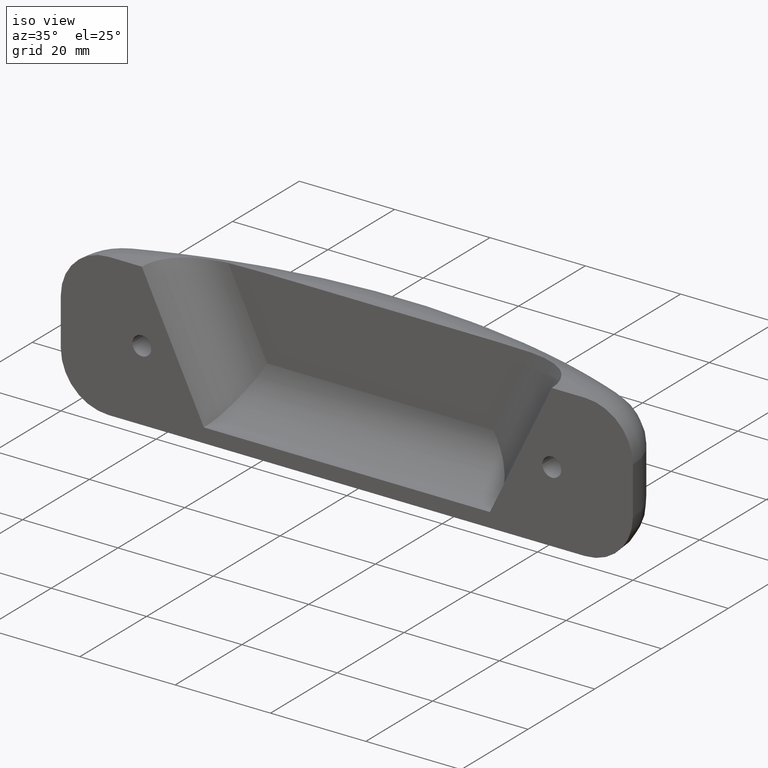
[diagram: clean part render]
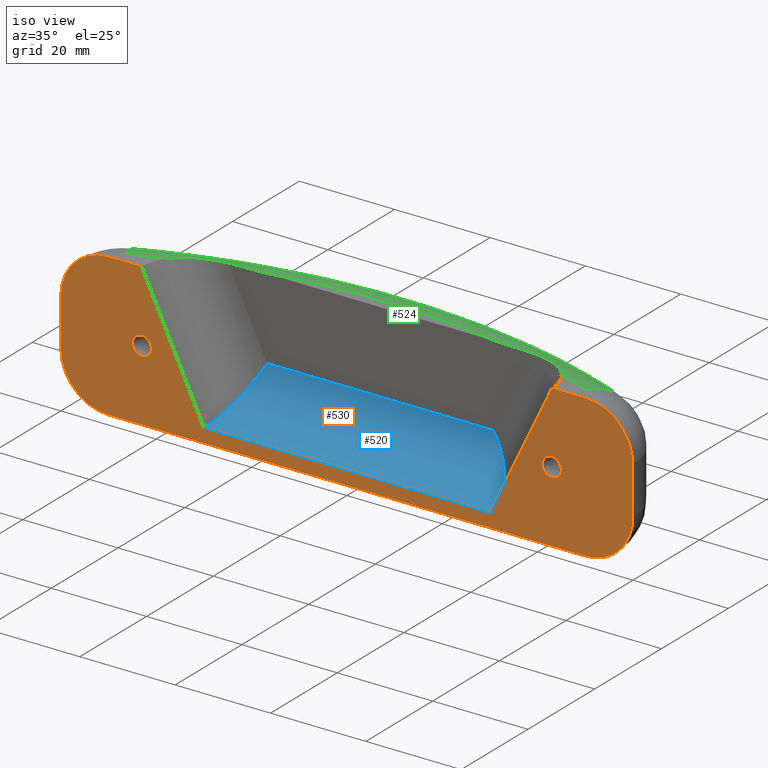
[diagram: same view with three faces highlighted in distinct colors, each labeled with its STEP entity id]
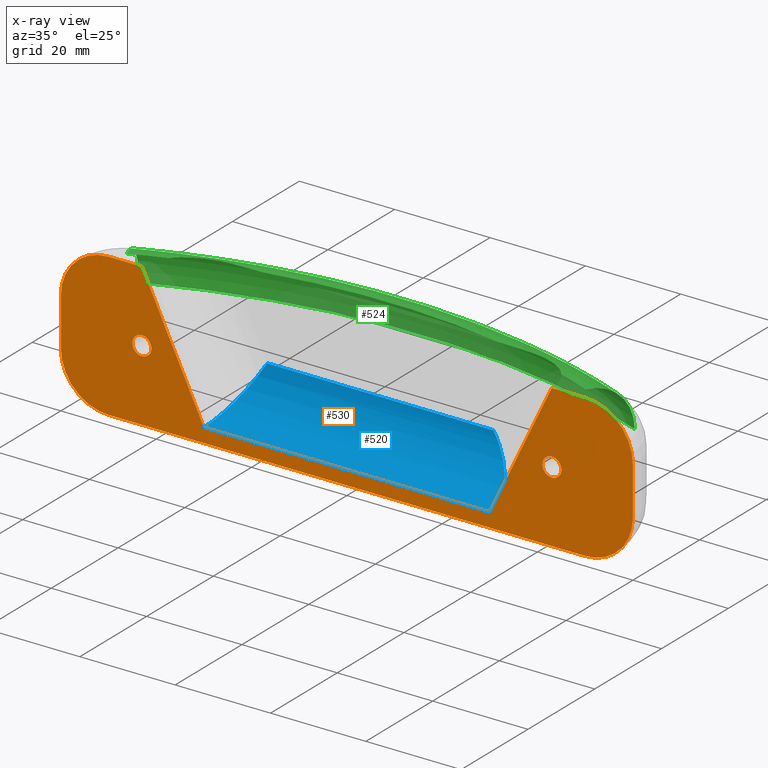
[diagram: x-ray of the same camera — body ghosted, the three highlighted faces saturated]
A machine part, iso view with three faces highlighted in distinct colors.
The next image is the same camera in x-ray (body ghosted, the three faces saturated) — at least one of them is partly hidden behind the body in this view.
Their STEP definitions:

[orange] entity #530 — the highlighted planar face has unit normal (-0, 1, 0).
#4 = EDGE_CURVE ( 'NONE', #357, #353, #642, .T. ) ;
#21 = LINE ( 'NONE', #206, #23 ) ;
#23 = VECTOR ( 'NONE', #207, 1000.000000000000000 ) ;
#28 = LINE ( 'NONE', #212, #29 ) ;
#29 = VECTOR ( 'NONE', #213, 1000.000000000000000 ) ;
#30 = LINE ( 'NONE', #214, #31 ) ;
#31 = VECTOR ( 'NONE', #215, 1000.000000000000000 ) ;
#34 = CIRCLE ( 'NONE', #99, 2.000000000000001800 ) ;
#38 = LINE ( 'NONE', #495, #40 ) ;
#40 = VECTOR ( 'NONE', #496, 999.9999999999998900 ) ;
#41 = LINE ( 'NONE', #500, #43 ) ;
#42 = CIRCLE ( 'NONE', #141, 10.00000000000000000 ) ;
#43 = VECTOR ( 'NONE', #501, 1000.000000000000000 ) ;
#70 = FACE_BOUND ( 'NONE', #607, .T. ) ;
#71 = FACE_BOUND ( 'NONE', #606, .T. ) ;
#72 = FACE_OUTER_BOUND ( 'NONE', #619, .T. ) ;
#80 = AXIS2_PLACEMENT_3D ( 'NONE', #253, #254, #255 ) ;
#87 = AXIS2_PLACEMENT_3D ( 'NONE', #179, #176, #175 ) ;
#89 = AXIS2_PLACEMENT_3D ( 'NONE', #232, #233, #234 ) ;
#93 = AXIS2_PLACEMENT_3D ( 'NONE', #235, #236, #237 ) ;
#97 = AXIS2_PLACEMENT_3D ( 'NONE', #245, #246, #247 ) ;
#99 = AXIS2_PLACEMENT_3D ( 'NONE', #222, #223, #224 ) ;
#110 = AXIS2_PLACEMENT_3D ( 'NONE', #242, #243, #244 ) ;
#140 = AXIS2_PLACEMENT_3D ( 'NONE', #319, #320, #321 ) ;
#141 = AXIS2_PLACEMENT_3D ( 'NONE', #497, #498, #499 ) ;
#175 = DIRECTION ( 'NONE',  ( -1.000000000000000000, -1.224646799147354200E-016, 0.0000000000000000000 ) ) ;
#176 = DIRECTION ( 'NONE',  ( 1.224646799147353500E-016, -1.000000000000000000, -0.0000000000000000000 ) ) ;
#179 = CARTESIAN_POINT ( 'NONE',  ( -110.0000000000000000, -1.347111479062088700E-014, 19.99999999999999600 ) ) ;
#206 = CARTESIAN_POINT ( 'NONE',  ( 0.0000000000000000000, 0.0000000000000000000, 30.00000000000000000 ) ) ;
#207 = DIRECTION ( 'NONE',  ( 1.000000000000000000, 1.224646799147353500E-016, -0.0000000000000000000 ) ) ;
#212 = CARTESIAN_POINT ( 'NONE',  ( 0.0000000000000000000, 0.0000000000000000000, 30.00000000000000000 ) ) ;
#213 = DIRECTION ( 'NONE',  ( -0.0000000000000000000, -0.0000000000000000000, -1.000000000000000000 ) ) ;
#214 = CARTESIAN_POINT ( 'NONE',  ( 0.0000000000000000000, 0.0000000000000000000, 0.0000000000000000000 ) ) ;
#215 = DIRECTION ( 'NONE',  ( 1.000000000000000000, 1.224646799147353500E-016, -0.0000000000000000000 ) ) ;
#222 = CARTESIAN_POINT ( 'NONE',  ( -103.0000000000000000, -1.261386203121773900E-014, 15.00000000000000000 ) ) ;
#223 = DIRECTION ( 'NONE',  ( 1.224646799147353500E-016, -1.000000000000000000, 0.0000000000000000000 ) ) ;
#224 = DIRECTION ( 'NONE',  ( 1.000000000000000000, 1.224646799147349500E-016, 0.0000000000000000000 ) ) ;
#232 = CARTESIAN_POINT ( 'NONE',  ( -17.00000000000000000, -2.081899558550500700E-015, 15.00000000000000000 ) ) ;
#233 = DIRECTION ( 'NONE',  ( 1.224646799147353500E-016, -1.000000000000000000, 0.0000000000000000000 ) ) ;
#234 = DIRECTION ( 'NONE',  ( 1.000000000000000000, 1.224646799147352500E-016, 0.0000000000000000000 ) ) ;
#235 = CARTESIAN_POINT ( 'NONE',  ( -110.0000000000000000, -1.347111479062088700E-014, 10.00000000000000200 ) ) ;
#236 = DIRECTION ( 'NONE',  ( 1.224646799147353500E-016, -1.000000000000000000, -0.0000000000000000000 ) ) ;
#237 = DIRECTION ( 'NONE',  ( -1.000000000000000000, -1.224646799147354200E-016, 0.0000000000000000000 ) ) ;
#240 = CARTESIAN_POINT ( 'NONE',  ( 0.0000000000000000000, 0.0000000000000000000, 30.00000000000000000 ) ) ;
#241 = DIRECTION ( 'NONE',  ( 1.000000000000000000, 1.224646799147353500E-016, -0.0000000000000000000 ) ) ;
#242 = CARTESIAN_POINT ( 'NONE',  ( -103.0000000000000000, -1.261386203121773900E-014, 15.00000000000000000 ) ) ;
#243 = DIRECTION ( 'NONE',  ( 1.224646799147353500E-016, -1.000000000000000000, 0.0000000000000000000 ) ) ;
#244 = DIRECTION ( 'NONE',  ( 1.000000000000000000, 1.224646799147349500E-016, 0.0000000000000000000 ) ) ;
#245 = CARTESIAN_POINT ( 'NONE',  ( -17.00000000000000000, -2.081899558550500700E-015, 15.00000000000000000 ) ) ;
#246 = DIRECTION ( 'NONE',  ( 1.224646799147353500E-016, -1.000000000000000000, 0.0000000000000000000 ) ) ;
#247 = DIRECTION ( 'NONE',  ( 1.000000000000000000, 1.224646799147352500E-016, 0.0000000000000000000 ) ) ;
#251 = CARTESIAN_POINT ( 'NONE',  ( -90.00000000000000000, -1.102182119232618100E-014, 2.999999999999999100 ) ) ;
#252 = DIRECTION ( 'NONE',  ( 1.000000000000000000, 1.224646799147353700E-016, 0.0000000000000000000 ) ) ;
#253 = CARTESIAN_POINT ( 'NONE',  ( -10.00000000000000400, -2.044928767197747700E-014, 10.00000000000000200 ) ) ;
#254 = DIRECTION ( 'NONE',  ( 1.224646799147353500E-016, -1.000000000000000000, -0.0000000000000000000 ) ) ;
#255 = DIRECTION ( 'NONE',  ( -1.000000000000000000, -1.224646799147353700E-016, 0.0000000000000000000 ) ) ;
#256 = CARTESIAN_POINT ( 'NONE',  ( -30.00000000000000000, -3.673940397442060000E-015, 2.999999999999999100 ) ) ;
#257 = DIRECTION ( 'NONE',  ( 0.4338156187728998700, 5.312709089503603000E-017, 0.9010016697590997900 ) ) ;
#268 = CARTESIAN_POINT ( 'NONE',  ( -19.00000000000000000, -2.326828918379971400E-015, 15.00000000000000000 ) ) ;
#318 = PLANE ( 'NONE',  #140 ) ;
#319 = CARTESIAN_POINT ( 'NONE',  ( 0.0000000000000000000, 0.0000000000000000000, 30.00000000000000000 ) ) ;
#320 = DIRECTION ( 'NONE',  ( -1.224646799147353500E-016, 1.000000000000000000, 0.0000000000000000000 ) ) ;
#321 = DIRECTION ( 'NONE',  ( -1.000000000000000000, -1.224646799147353500E-016, 0.0000000000000000000 ) ) ;
#347 = VERTEX_POINT ( 'NONE', #473 ) ;
#348 = VERTEX_POINT ( 'NONE', #474 ) ;
#353 = VERTEX_POINT ( 'NONE', #479 ) ;
#357 = VERTEX_POINT ( 'NONE', #483 ) ;
#359 = VERTEX_POINT ( 'NONE', #485 ) ;
#362 = VERTEX_POINT ( 'NONE', #488 ) ;
#363 = VERTEX_POINT ( 'NONE', #489 ) ;
#364 = VERTEX_POINT ( 'NONE', #490 ) ;
#366 = VERTEX_POINT ( 'NONE', #492 ) ;
#367 = VERTEX_POINT ( 'NONE', #493 ) ;
#368 = VERTEX_POINT ( 'NONE', #494 ) ;
#369 = EDGE_CURVE ( 'NONE', #364, #347, #38, .T. ) ;
#370 = EDGE_CURVE ( 'NONE', #359, #363, #42, .T. ) ;
#371 = EDGE_CURVE ( 'NONE', #353, #390, #41, .T. ) ;
#372 = VERTEX_POINT ( 'NONE', #502 ) ;
#377 = VERTEX_POINT ( 'NONE', #505 ) ;
#382 = VERTEX_POINT ( 'NONE', #509 ) ;
#390 = VERTEX_POINT ( 'NONE', #514 ) ;
#391 = VERTEX_POINT ( 'NONE', #268 ) ;
#473 = CARTESIAN_POINT ( 'NONE',  ( -90.00000000000000000, -1.102182119232618100E-014, 2.999999999999999100 ) ) ;
#474 = CARTESIAN_POINT ( 'NONE',  ( -30.00000000000000000, -3.673940397442060000E-015, 2.999999999999999100 ) ) ;
#479 = CARTESIAN_POINT ( 'NONE',  ( -120.0000000000000000, -1.469576158976824000E-014, 19.99999999999999600 ) ) ;
#483 = CARTESIAN_POINT ( 'NONE',  ( -110.0000000000000000, -1.347111479062088800E-014, 30.00000000000000000 ) ) ;
#485 = CARTESIAN_POINT ( 'NONE',  ( 0.0000000000000000000, 0.0000000000000000000, 19.99999999999999600 ) ) ;
#488 = CARTESIAN_POINT ( 'NONE',  ( -105.0000000000000000, -1.285879139104721100E-014, 15.00000000000000000 ) ) ;
#489 = CARTESIAN_POINT ( 'NONE',  ( -10.00000000000000400, -1.224646799147354000E-015, 30.00000000000000000 ) ) ;
#490 = CARTESIAN_POINT ( 'NONE',  ( -103.0000000000000000, -1.261386203121773900E-014, 30.00000000000000000 ) ) ;
#492 = CARTESIAN_POINT ( 'NONE',  ( -17.00000000000000000, -2.081899558550500700E-015, 30.00000000000000000 ) ) ;
#493 = CARTESIAN_POINT ( 'NONE',  ( -10.00000000000000400, -1.224646799147354000E-015, 0.0000000000000000000 ) ) ;
#494 = CARTESIAN_POINT ( 'NONE',  ( -110.0000000000000000, -1.347111479062088700E-014, 0.0000000000000000000 ) ) ;
#495 = CARTESIAN_POINT ( 'NONE',  ( -103.0000000000000000, -1.261386203121773900E-014, 30.00000000000000000 ) ) ;
#496 = DIRECTION ( 'NONE',  ( 0.4338156187728998700, 5.312709089503601800E-017, -0.9010016697590997900 ) ) ;
#497 = CARTESIAN_POINT ( 'NONE',  ( -10.00000000000000400, -2.044928767197747700E-014, 19.99999999999999600 ) ) ;
#498 = DIRECTION ( 'NONE',  ( 1.224646799147353500E-016, -1.000000000000000000, -0.0000000000000000000 ) ) ;
#499 = DIRECTION ( 'NONE',  ( -1.000000000000000000, -1.224646799147353700E-016, 0.0000000000000000000 ) ) ;
#500 = CARTESIAN_POINT ( 'NONE',  ( -120.0000000000000000, -1.469576158976824000E-014, 30.00000000000000000 ) ) ;
#501 = DIRECTION ( 'NONE',  ( -0.0000000000000000000, -0.0000000000000000000, -1.000000000000000000 ) ) ;
#502 = CARTESIAN_POINT ( 'NONE',  ( 0.0000000000000000000, 0.0000000000000000000, 10.00000000000000200 ) ) ;
#505 = CARTESIAN_POINT ( 'NONE',  ( -100.9999999999999900, -1.236893267138826900E-014, 15.00000000000000000 ) ) ;
#509 = CARTESIAN_POINT ( 'NONE',  ( -15.00000000000000200, -1.836970198721030400E-015, 15.00000000000000000 ) ) ;
#514 = CARTESIAN_POINT ( 'NONE',  ( -120.0000000000000000, -1.469576158976824000E-014, 10.00000000000000200 ) ) ;
#530 = ADVANCED_FACE ( 'NONE', ( #70, #71, #72 ), #318, .F. ) ;
#552 = ORIENTED_EDGE ( 'NONE', *, *, #755, .F. ) ;
#553 = ORIENTED_EDGE ( 'NONE', *, *, #754, .F. ) ;
#554 = ORIENTED_EDGE ( 'NONE', *, *, #747, .F. ) ;
#555 = ORIENTED_EDGE ( 'NONE', *, *, #740, .F. ) ;
#556 = ORIENTED_EDGE ( 'NONE', *, *, #759, .F. ) ;
#557 = ORIENTED_EDGE ( 'NONE', *, *, #757, .F. ) ;
#558 = ORIENTED_EDGE ( 'NONE', *, *, #369, .F. ) ;
#559 = ORIENTED_EDGE ( 'NONE', *, *, #753, .F. ) ;
#560 = ORIENTED_EDGE ( 'NONE', *, *, #4, .T. ) ;
#561 = ORIENTED_EDGE ( 'NONE', *, *, #371, .T. ) ;
#562 = ORIENTED_EDGE ( 'NONE', *, *, #751, .T. ) ;
#563 = ORIENTED_EDGE ( 'NONE', *, *, #744, .T. ) ;
#564 = ORIENTED_EDGE ( 'NONE', *, *, #758, .T. ) ;
#565 = ORIENTED_EDGE ( 'NONE', *, *, #743, .F. ) ;
#566 = ORIENTED_EDGE ( 'NONE', *, *, #370, .T. ) ;
#606 = EDGE_LOOP ( 'NONE', ( #553, #554 ) ) ;
#607 = EDGE_LOOP ( 'NONE', ( #622, #552 ) ) ;
#619 = EDGE_LOOP ( 'NONE', ( #555, #556, #557, #558, #559, #560, #561, #562, #563, #564, #565, #566 ) ) ;
#622 = ORIENTED_EDGE ( 'NONE', *, *, #750, .F. ) ;
#642 = CIRCLE ( 'NONE', #87, 9.999999999999994700 ) ;
#702 = CIRCLE ( 'NONE', #89, 2.000000000000000000 ) ;
#704 = CIRCLE ( 'NONE', #93, 9.999999999999994700 ) ;
#706 = LINE ( 'NONE', #240, #707 ) ;
#707 = VECTOR ( 'NONE', #241, 1000.000000000000000 ) ;
#708 = CIRCLE ( 'NONE', #110, 2.000000000000001800 ) ;
#709 = CIRCLE ( 'NONE', #97, 2.000000000000000000 ) ;
#710 = LINE ( 'NONE', #251, #712 ) ;
#712 = VECTOR ( 'NONE', #252, 1000.000000000000000 ) ;
#713 = LINE ( 'NONE', #256, #715 ) ;
#714 = CIRCLE ( 'NONE', #80, 10.00000000000000000 ) ;
#715 = VECTOR ( 'NONE', #257, 999.9999999999998900 ) ;
#740 = EDGE_CURVE ( 'NONE', #366, #363, #21, .T. ) ;
#743 = EDGE_CURVE ( 'NONE', #359, #372, #28, .T. ) ;
#744 = EDGE_CURVE ( 'NONE', #368, #367, #30, .T. ) ;
#747 = EDGE_CURVE ( 'NONE', #362, #377, #34, .T. ) ;
#750 = EDGE_CURVE ( 'NONE', #382, #391, #702, .T. ) ;
#751 = EDGE_CURVE ( 'NONE', #390, #368, #704, .T. ) ;
#753 = EDGE_CURVE ( 'NONE', #357, #364, #706, .T. ) ;
#754 = EDGE_CURVE ( 'NONE', #377, #362, #708, .T. ) ;
#755 = EDGE_CURVE ( 'NONE', #391, #382, #709, .T. ) ;
#757 = EDGE_CURVE ( 'NONE', #347, #348, #710, .T. ) ;
#758 = EDGE_CURVE ( 'NONE', #367, #372, #714, .T. ) ;
#759 = EDGE_CURVE ( 'NONE', #348, #366, #713, .T. ) ;

[blue] entity #520 — the highlighted cylindrical surface (partial cylindrical patch) has radius 10 mm, axis along (1, 0, 0).
#53 = FACE_OUTER_BOUND ( 'NONE', #688, .T. ) ;
#54 = CYLINDRICAL_SURFACE ( 'NONE', #75, 10.00000000000000000 ) ;
#75 = AXIS2_PLACEMENT_3D ( 'NONE', #285, #286, #287 ) ;
#145 =( BOUNDED_CURVE ( )  B_SPLINE_CURVE ( 3, ( #452, #453, #454, #455 ),
 .UNSPECIFIED., .F., .T. ) 
 B_SPLINE_CURVE_WITH_KNOTS ( ( 4, 4 ),
 ( 0.0000000000000000000, 1.570796326794896600 ),
 .UNSPECIFIED. ) 
 CURVE ( )  GEOMETRIC_REPRESENTATION_ITEM ( )  RATIONAL_B_SPLINE_CURVE ( ( 1.000000000000000000, 0.8047378541243649400, 0.8047378541243649400, 1.000000000000000000 ) ) 
 REPRESENTATION_ITEM ( '' )  );
#147 =( BOUNDED_CURVE ( )  B_SPLINE_CURVE ( 3, ( #731, #735, #765, #766 ),
 .UNSPECIFIED., .F., .T. ) 
 B_SPLINE_CURVE_WITH_KNOTS ( ( 4, 4 ),
 ( 1.570796326794896800, 3.141592653589793100 ),
 .UNSPECIFIED. ) 
 CURVE ( )  GEOMETRIC_REPRESENTATION_ITEM ( )  RATIONAL_B_SPLINE_CURVE ( ( 1.000000000000000000, 0.8047378541243650500, 0.8047378541243650500, 1.000000000000000000 ) ) 
 REPRESENTATION_ITEM ( '' )  );
#155 = EDGE_CURVE ( 'NONE', #385, #347, #147, .T. ) ;
#160 = EDGE_CURVE ( 'NONE', #348, #381, #145, .T. ) ;
#251 = CARTESIAN_POINT ( 'NONE',  ( -90.00000000000000000, -1.102182119232618100E-014, 2.999999999999999100 ) ) ;
#252 = DIRECTION ( 'NONE',  ( 1.000000000000000000, 1.224646799147353700E-016, 0.0000000000000000000 ) ) ;
#285 = CARTESIAN_POINT ( 'NONE',  ( -102.9999999999999900, -1.214306433183765000E-014, 13.00000000000000200 ) ) ;
#286 = DIRECTION ( 'NONE',  ( 1.000000000000000000, 1.224646799147353500E-016, 0.0000000000000000000 ) ) ;
#287 = DIRECTION ( 'NONE',  ( 0.0000000000000000000, 1.000000000000000000, 0.0000000000000000000 ) ) ;
#347 = VERTEX_POINT ( 'NONE', #473 ) ;
#348 = VERTEX_POINT ( 'NONE', #474 ) ;
#381 = VERTEX_POINT ( 'NONE', #508 ) ;
#385 = VERTEX_POINT ( 'NONE', #511 ) ;
#401 = CARTESIAN_POINT ( 'NONE',  ( -102.9999999999999900, 9.999999999999987600, 13.00000000000000200 ) ) ;
#402 = DIRECTION ( 'NONE',  ( 1.000000000000000000, 1.224646799147353500E-016, 0.0000000000000000000 ) ) ;
#452 = CARTESIAN_POINT ( 'NONE',  ( -30.00000000000000000, -3.673940397442060000E-015, 2.999999999999999100 ) ) ;
#453 = CARTESIAN_POINT ( 'NONE',  ( -29.99999999999999600, 5.857864376269048100, 2.999999999999996400 ) ) ;
#454 = CARTESIAN_POINT ( 'NONE',  ( -32.60289472682982400, 9.999999999999998200, 7.142135623730949200 ) ) ;
#455 = CARTESIAN_POINT ( 'NONE',  ( -36.28394375094198700, 9.999999999999996400, 13.00000000000000200 ) ) ;
#473 = CARTESIAN_POINT ( 'NONE',  ( -90.00000000000000000, -1.102182119232618100E-014, 2.999999999999999100 ) ) ;
#474 = CARTESIAN_POINT ( 'NONE',  ( -30.00000000000000000, -3.673940397442060000E-015, 2.999999999999999100 ) ) ;
#508 = CARTESIAN_POINT ( 'NONE',  ( -36.28394375094198700, 9.999999999999996400, 13.00000000000000200 ) ) ;
#511 = CARTESIAN_POINT ( 'NONE',  ( -83.71605624905801300, 9.999999999999989300, 13.00000000000000400 ) ) ;
#520 = ADVANCED_FACE ( 'NONE', ( #53 ), #54, .F. ) ;
#682 = ORIENTED_EDGE ( 'NONE', *, *, #155, .T. ) ;
#683 = ORIENTED_EDGE ( 'NONE', *, *, #757, .T. ) ;
#688 = EDGE_LOOP ( 'NONE', ( #682, #683, #693, #694 ) ) ;
#693 = ORIENTED_EDGE ( 'NONE', *, *, #160, .T. ) ;
#694 = ORIENTED_EDGE ( 'NONE', *, *, #771, .F. ) ;
#710 = LINE ( 'NONE', #251, #712 ) ;
#712 = VECTOR ( 'NONE', #252, 1000.000000000000000 ) ;
#722 = LINE ( 'NONE', #401, #724 ) ;
#724 = VECTOR ( 'NONE', #402, 1000.000000000000000 ) ;
#731 = CARTESIAN_POINT ( 'NONE',  ( -83.71605624905801300, 9.999999999999989300, 13.00000000000000400 ) ) ;
#735 = CARTESIAN_POINT ( 'NONE',  ( -87.39710527317015500, 9.999999999999989300, 7.142135623730949200 ) ) ;
#757 = EDGE_CURVE ( 'NONE', #347, #348, #710, .T. ) ;
#765 = CARTESIAN_POINT ( 'NONE',  ( -90.00000000000001400, 5.857864376269039200, 2.999999999999998200 ) ) ;
#766 = CARTESIAN_POINT ( 'NONE',  ( -90.00000000000000000, -1.102182119232618100E-014, 2.999999999999999100 ) ) ;
#771 = EDGE_CURVE ( 'NONE', #385, #381, #722, .T. ) ;

[green] entity #524 — the highlighted toroidal blend (fillet) surface has major radius 125.2 mm and minor (blend) radius 10 mm.
#3 = EDGE_CURVE ( 'NONE', #351, #361, #641, .T. ) ;
#20 = CIRCLE ( 'NONE', #116, 125.2000000000006700 ) ;
#22 = CIRCLE ( 'NONE', #104, 125.2000000000006700 ) ;
#60 = FACE_OUTER_BOUND ( 'NONE', #613, .T. ) ;
#61 = TOROIDAL_SURFACE ( 'NONE', #139, 125.2000000000006700, 10.00000000000000000 ) ;
#76 = AXIS2_PLACEMENT_3D ( 'NONE', #177, #178, #185 ) ;
#88 = AXIS2_PLACEMENT_3D ( 'NONE', #728, #726, #736 ) ;
#92 = AXIS2_PLACEMENT_3D ( 'NONE', #462, #463, #464 ) ;
#104 = AXIS2_PLACEMENT_3D ( 'NONE', #203, #204, #205 ) ;
#116 = AXIS2_PLACEMENT_3D ( 'NONE', #200, #201, #202 ) ;
#128 = AXIS2_PLACEMENT_3D ( 'NONE', #733, #734, #729 ) ;
#139 = AXIS2_PLACEMENT_3D ( 'NONE', #298, #299, #300 ) ;
#151 = EDGE_CURVE ( 'NONE', #373, #379, #544, .T. ) ;
#153 = EDGE_CURVE ( 'NONE', #384, #356, #650, .T. ) ;
#154 = EDGE_CURVE ( 'NONE', #384, #365, #651, .T. ) ;
#156 = EDGE_CURVE ( 'NONE', #350, #386, #543, .T. ) ;
#158 = EDGE_CURVE ( 'NONE', #386, #361, #542, .T. ) ;
#159 = EDGE_CURVE ( 'NONE', #355, #373, #541, .T. ) ;
#163 = EDGE_CURVE ( 'NONE', #356, #351, #656, .T. ) ;
#177 = CARTESIAN_POINT ( 'NONE',  ( -60.00000000000000000, -112.8000000000007600, 30.00000000000000000 ) ) ;
#178 = DIRECTION ( 'NONE',  ( 0.0000000000000000000, 0.0000000000000000000, 1.000000000000000000 ) ) ;
#180 = CARTESIAN_POINT ( 'NONE',  ( -90.59727264926419800, 9.999999999999989300, 29.91362001034588400 ) ) ;
#183 = CARTESIAN_POINT ( 'NONE',  ( -91.83449836807743300, 9.999999999999989300, 29.86137978565571800 ) ) ;
#185 = DIRECTION ( 'NONE',  ( -1.000000000000000000, -1.596167287799737300E-014, 0.0000000000000000000 ) ) ;
#187 = CARTESIAN_POINT ( 'NONE',  ( -89.35857953880814400, 9.999999999999987600, 29.94807394158818100 ) ) ;
#200 = CARTESIAN_POINT ( 'NONE',  ( -60.00000000000000000, -112.8000000000007600, 30.00000000000000000 ) ) ;
#201 = DIRECTION ( 'NONE',  ( 0.0000000000000000000, 0.0000000000000000000, 1.000000000000000000 ) ) ;
#202 = DIRECTION ( 'NONE',  ( -1.000000000000000000, -2.660278812999562100E-015, 0.0000000000000000000 ) ) ;
#203 = CARTESIAN_POINT ( 'NONE',  ( -60.00000000000000000, -112.8000000000007600, 30.00000000000000000 ) ) ;
#204 = DIRECTION ( 'NONE',  ( 0.0000000000000000000, 0.0000000000000000000, 1.000000000000000000 ) ) ;
#205 = DIRECTION ( 'NONE',  ( -1.000000000000000000, 0.0000000000000000000, 0.0000000000000000000 ) ) ;
#298 = CARTESIAN_POINT ( 'NONE',  ( -60.00000000000000000, -112.8000000000007600, 19.99999999999999600 ) ) ;
#299 = DIRECTION ( 'NONE',  ( -0.0000000000000000000, -0.0000000000000000000, -1.000000000000000000 ) ) ;
#300 = DIRECTION ( 'NONE',  ( -1.000000000000000000, 0.0000000000000000000, 0.0000000000000000000 ) ) ;
#345 = CARTESIAN_POINT ( 'NONE',  ( -33.12275765736458800, 9.999999999999996400, 29.99129226696900500 ) ) ;
#346 = CARTESIAN_POINT ( 'NONE',  ( -30.64339637537564800, 9.999999999999996400, 29.94812160532184100 ) ) ;
#350 = VERTEX_POINT ( 'NONE', #476 ) ;
#351 = VERTEX_POINT ( 'NONE', #477 ) ;
#355 = VERTEX_POINT ( 'NONE', #481 ) ;
#356 = VERTEX_POINT ( 'NONE', #482 ) ;
#361 = VERTEX_POINT ( 'NONE', #487 ) ;
#365 = VERTEX_POINT ( 'NONE', #491 ) ;
#373 = VERTEX_POINT ( 'NONE', #503 ) ;
#379 = VERTEX_POINT ( 'NONE', #506 ) ;
#384 = VERTEX_POINT ( 'NONE', #510 ) ;
#386 = VERTEX_POINT ( 'NONE', #512 ) ;
#392 = CARTESIAN_POINT ( 'NONE',  ( -29.40414845642340300, 9.999999999999998200, 29.91368001465981100 ) ) ;
#393 = CARTESIAN_POINT ( 'NONE',  ( -28.16550163192256000, 9.999999999999996400, 29.86137978565571800 ) ) ;
#428 = CARTESIAN_POINT ( 'NONE',  ( -26.36190703037555800, 9.896174280497533000, 29.79385124731479500 ) ) ;
#429 = CARTESIAN_POINT ( 'NONE',  ( -25.04642708952121000, 9.595288485403127500, 29.77967570029227000 ) ) ;
#430 = CARTESIAN_POINT ( 'NONE',  ( -24.61186274614040700, 9.470530911299373900, 29.77964377878916800 ) ) ;
#431 = CARTESIAN_POINT ( 'NONE',  ( -23.75163219631267000, 9.170895472018454300, 29.78922922563628400 ) ) ;
#432 = CARTESIAN_POINT ( 'NONE',  ( -23.33389297804718500, 8.998811316853032600, 29.79874518308216100 ) ) ;
#433 = CARTESIAN_POINT ( 'NONE',  ( -22.11666676984014800, 8.417612681810966900, 29.83828619308901200 ) ) ;
#434 = CARTESIAN_POINT ( 'NONE',  ( -21.35176211577168500, 7.944987411507656600, 29.88021583827913500 ) ) ;
#435 = CARTESIAN_POINT ( 'NONE',  ( -19.93109779212471000, 6.805100171455288600, 29.96138517844270100 ) ) ;
#436 = CARTESIAN_POINT ( 'NONE',  ( -19.30008811923412900, 6.159078779766350200, 30.00000000000001800 ) ) ;
#437 = CARTESIAN_POINT ( 'NONE',  ( -18.76874071229203600, 5.416002544282427800, 30.00000000000000000 ) ) ;
#438 = CARTESIAN_POINT ( 'NONE',  ( -101.2312592877079400, 5.416002544282413600, 30.00000000000000000 ) ) ;
#439 = CARTESIAN_POINT ( 'NONE',  ( -100.6995507567934900, 6.159583802729520700, 30.00000000000000000 ) ) ;
#440 = CARTESIAN_POINT ( 'NONE',  ( -100.0716448574122800, 6.801400903035444800, 29.96154667965403500 ) ) ;
#441 = CARTESIAN_POINT ( 'NONE',  ( -99.01862418571249700, 7.648535248190969900, 29.90137543582478200 ) ) ;
#442 = CARTESIAN_POINT ( 'NONE',  ( -98.64605566071523400, 7.912432629644701600, 29.88026941427475300 ) ) ;
#443 = CARTESIAN_POINT ( 'NONE',  ( -97.87812999881998600, 8.392235948843994800, 29.84225185137766100 ) ) ;
#444 = CARTESIAN_POINT ( 'NONE',  ( -97.48276261621390400, 8.608663055440757700, 29.82530487897259500 ) ) ;
#445 = CARTESIAN_POINT ( 'NONE',  ( -96.67029957590615700, 8.997020270429574800, 29.79885070151317100 ) ) ;
#446 = CARTESIAN_POINT ( 'NONE',  ( -96.25319476760191200, 9.168930824457532900, 29.78933404366302900 ) ) ;
#447 = CARTESIAN_POINT ( 'NONE',  ( -95.39694754655826600, 9.467740954409961800, 29.77969172543412300 ) ) ;
#448 = CARTESIAN_POINT ( 'NONE',  ( -94.95844763676224400, 9.594035504741006200, 29.77964805374654800 ) ) ;
#449 = CARTESIAN_POINT ( 'NONE',  ( -93.63896549777983600, 9.896249048281889700, 29.79379237770879700 ) ) ;
#450 = CARTESIAN_POINT ( 'NONE',  ( -92.74464539025916600, 10.00000000000002100, 29.82295002767656200 ) ) ;
#451 = CARTESIAN_POINT ( 'NONE',  ( -91.83449836807743300, 9.999999999999989300, 29.86137978565571800 ) ) ;
#462 = CARTESIAN_POINT ( 'NONE',  ( -11.84615384615382500, 2.769230769230749600, 19.99999999999999600 ) ) ;
#463 = DIRECTION ( 'NONE',  ( 0.9230769230769240200, -0.3846153846153828600, 3.139182290181107300E-015 ) ) ;
#464 = DIRECTION ( 'NONE',  ( 0.3846153846153828000, 0.9230769230769239100, 0.0000000000000000000 ) ) ;
#476 = CARTESIAN_POINT ( 'NONE',  ( -35.60327890881890100, 9.999999999999996400, 30.00000000000000000 ) ) ;
#477 = CARTESIAN_POINT ( 'NONE',  ( -11.84615384615385600, 2.769230769230760300, 30.00000000000000000 ) ) ;
#481 = CARTESIAN_POINT ( 'NONE',  ( -101.2312592877079400, 5.416002544282413600, 30.00000000000000000 ) ) ;
#482 = CARTESIAN_POINT ( 'NONE',  ( -8.000000000000000000, 11.99999999999998200, 19.99999999999999600 ) ) ;
#487 = CARTESIAN_POINT ( 'NONE',  ( -18.76874071229203600, 5.416002544282427800, 30.00000000000000000 ) ) ;
#491 = CARTESIAN_POINT ( 'NONE',  ( -108.1538461538461500, 2.769230769230757200, 30.00000000000000000 ) ) ;
#503 = CARTESIAN_POINT ( 'NONE',  ( -91.83449836807743300, 9.999999999999989300, 29.86137978565571800 ) ) ;
#506 = CARTESIAN_POINT ( 'NONE',  ( -84.39672109116274600, 9.999999999999976900, 30.00000000000000000 ) ) ;
#510 = CARTESIAN_POINT ( 'NONE',  ( -111.9999999999999900, 11.99999999999998800, 19.99999999999999600 ) ) ;
#512 = CARTESIAN_POINT ( 'NONE',  ( -28.16550163192256000, 9.999999999999996400, 29.86137978565571800 ) ) ;
#524 = ADVANCED_FACE ( 'NONE', ( #60 ), #61, .T. ) ;
#541 = B_SPLINE_CURVE_WITH_KNOTS ( 'NONE', 3,
 ( #438, #439, #440, #441, #442, #443, #444, #445, #446, #447, #448, #449, #450, #451 ),
 .UNSPECIFIED., .F., .F.,
 ( 4, 2, 2, 2, 2, 2, 4 ),
 ( 8.673617379884035500E-019, 0.002694784236104715600, 0.004042176354157088800, 0.005389568472209462500, 0.006736960590261835200, 0.008084352708314208900, 0.01077913694441891600 ),
 .UNSPECIFIED. ) ;
#542 = B_SPLINE_CURVE_WITH_KNOTS ( 'NONE', 3,
 ( #545, #659, #428, #429, #430, #431, #432, #433, #434, #435, #436, #437 ),
 .UNSPECIFIED., .F., .F.,
 ( 4, 2, 2, 2, 2, 4 ),
 ( 1.055191096010040500E-017, 0.002694657949285104600, 0.004041986923927656600, 0.005389315898570208200, 0.008083973847855309800, 0.01077863179714041100 ),
 .UNSPECIFIED. ) ;
#543 = B_SPLINE_CURVE_WITH_KNOTS ( 'NONE', 3,
 ( #767, #764, #345, #346, #392, #393 ),
 .UNSPECIFIED., .F., .F.,
 ( 4, 2, 4 ),
 ( 0.02439995914436628900, 0.02812365668694389400, 0.03184735422952150000 ),
 .UNSPECIFIED. ) ;
#544 = B_SPLINE_CURVE_WITH_KNOTS ( 'NONE', 3,
 ( #183, #180, #187, #732, #730, #737 ),
 .UNSPECIFIED., .F., .F.,
 ( 4, 2, 4 ),
 ( 0.2086211309165245700, 0.2123729045330488800, 0.2161246781495732000 ),
 .UNSPECIFIED. ) ;
#545 = CARTESIAN_POINT ( 'NONE',  ( -28.16550163192256000, 9.999999999999996400, 29.86137978565571800 ) ) ;
#592 = ORIENTED_EDGE ( 'NONE', *, *, #156, .T. ) ;
#593 = ORIENTED_EDGE ( 'NONE', *, *, #158, .T. ) ;
#594 = ORIENTED_EDGE ( 'NONE', *, *, #3, .F. ) ;
#595 = ORIENTED_EDGE ( 'NONE', *, *, #163, .F. ) ;
#596 = ORIENTED_EDGE ( 'NONE', *, *, #153, .F. ) ;
#597 = ORIENTED_EDGE ( 'NONE', *, *, #154, .T. ) ;
#598 = ORIENTED_EDGE ( 'NONE', *, *, #739, .F. ) ;
#599 = ORIENTED_EDGE ( 'NONE', *, *, #159, .T. ) ;
#600 = ORIENTED_EDGE ( 'NONE', *, *, #151, .T. ) ;
#601 = ORIENTED_EDGE ( 'NONE', *, *, #738, .F. ) ;
#613 = EDGE_LOOP ( 'NONE', ( #592, #593, #594, #595, #596, #597, #598, #599, #600, #601 ) ) ;
#641 = CIRCLE ( 'NONE', #76, 125.2000000000006700 ) ;
#650 = CIRCLE ( 'NONE', #88, 135.2000000000006700 ) ;
#651 = CIRCLE ( 'NONE', #128, 10.00000000000000000 ) ;
#656 = CIRCLE ( 'NONE', #92, 10.00000000000000200 ) ;
#659 = CARTESIAN_POINT ( 'NONE',  ( -27.25496749468261400, 10.00000000000000000, 29.82293368225342100 ) ) ;
#726 = DIRECTION ( 'NONE',  ( -0.0000000000000000000, -0.0000000000000000000, -1.000000000000000000 ) ) ;
#728 = CARTESIAN_POINT ( 'NONE',  ( -60.00000000000000000, -112.8000000000007600, 19.99999999999999600 ) ) ;
#729 = DIRECTION ( 'NONE',  ( -0.3846153846153846400, 0.9230769230769230200, 0.0000000000000000000 ) ) ;
#730 = CARTESIAN_POINT ( 'NONE',  ( -85.63825669440206000, 9.999999999999989300, 30.00000000000000400 ) ) ;
#732 = CARTESIAN_POINT ( 'NONE',  ( -86.87907236205182900, 9.999999999999989300, 29.99127364141558200 ) ) ;
#733 = CARTESIAN_POINT ( 'NONE',  ( -108.1538461538461500, 2.769230769230755000, 19.99999999999999600 ) ) ;
#734 = DIRECTION ( 'NONE',  ( 0.9230769230769230200, 0.3846153846153844700, -1.000802005371234300E-016 ) ) ;
#736 = DIRECTION ( 'NONE',  ( -1.000000000000000000, 0.0000000000000000000, 0.0000000000000000000 ) ) ;
#737 = CARTESIAN_POINT ( 'NONE',  ( -84.39672109116274600, 9.999999999999976900, 30.00000000000000000 ) ) ;
#738 = EDGE_CURVE ( 'NONE', #350, #379, #20, .T. ) ;
#739 = EDGE_CURVE ( 'NONE', #355, #365, #22, .T. ) ;
#764 = CARTESIAN_POINT ( 'NONE',  ( -34.36287173860417700, 9.999999999999996400, 29.99999999999990800 ) ) ;
#767 = CARTESIAN_POINT ( 'NONE',  ( -35.60327890881890100, 9.999999999999996400, 30.00000000000000000 ) ) ;